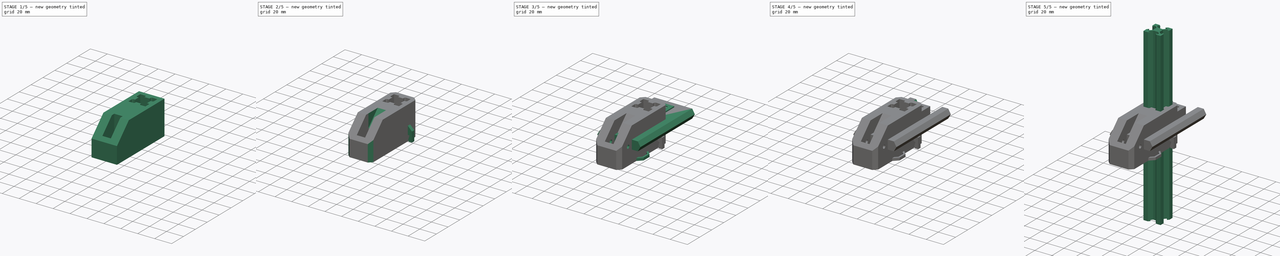
[diagram: build sequence overview — one tinted view per stage of 5, left to right]
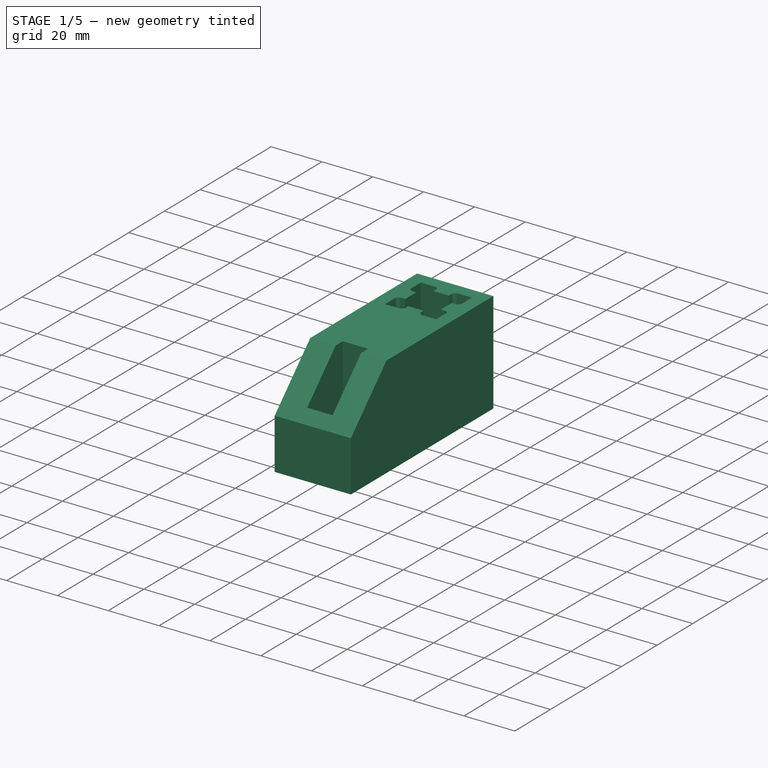
[diagram: stage 1 of 5 — iso view after this stage's code; geometry added in this stage tinted green]
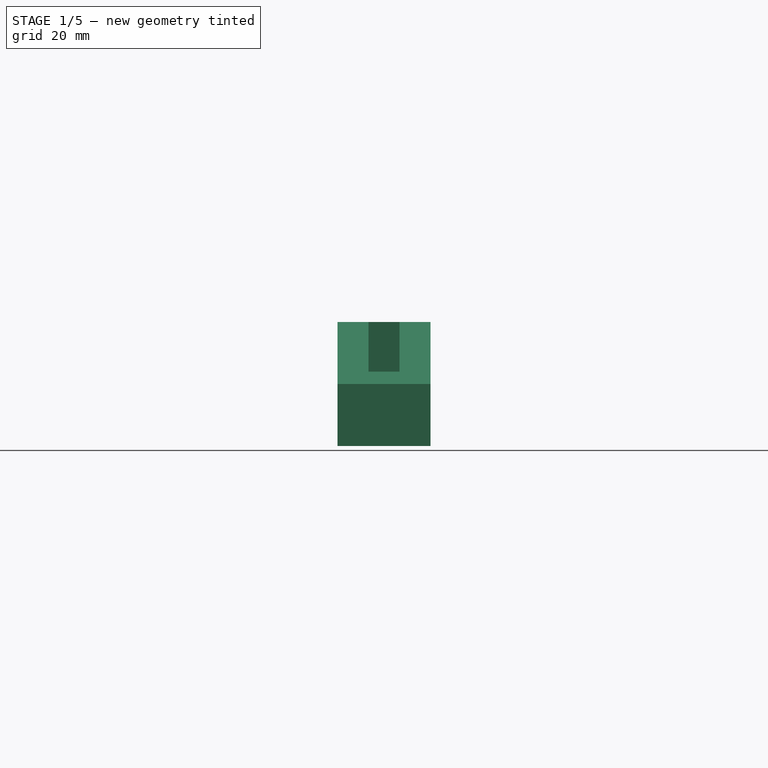
[diagram: stage 1 of 5 — front view after this stage's code; geometry added in this stage tinted green]
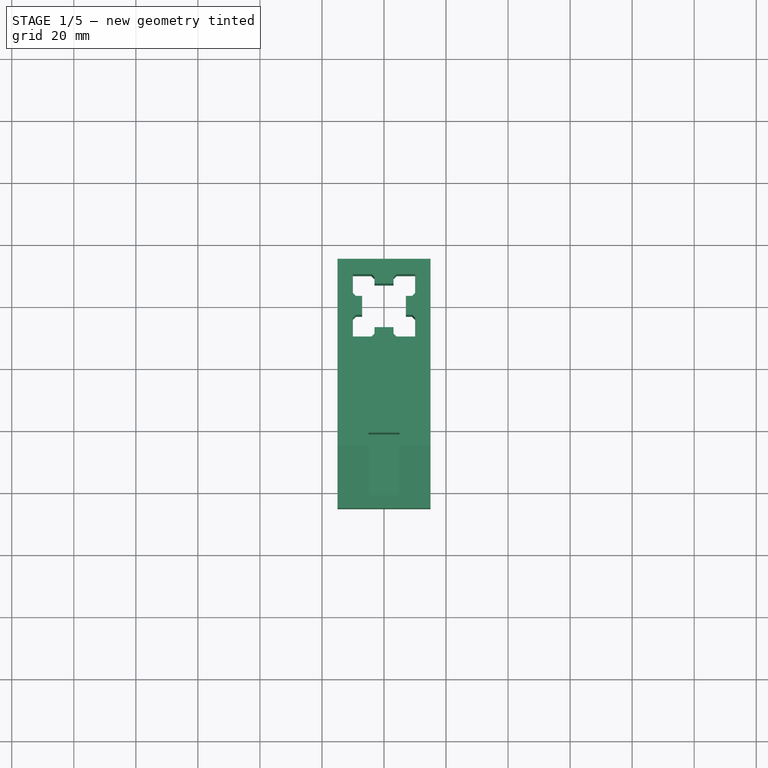
[diagram: stage 1 of 5 — top view after this stage's code; geometry added in this stage tinted green]
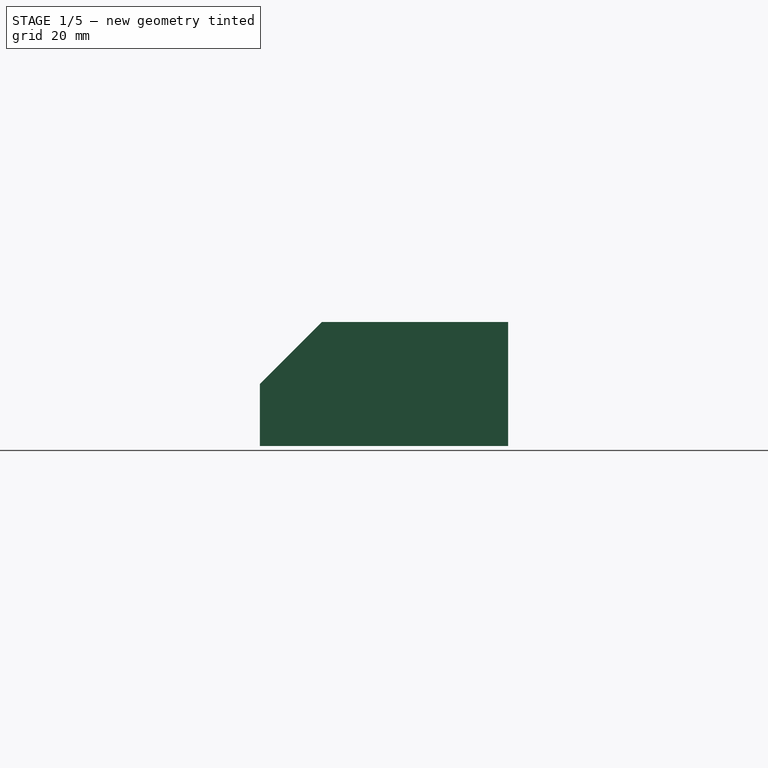
[diagram: stage 1 of 5 — right view after this stage's code; geometry added in this stage tinted green]
FCSTD DOCUMENT  (FreeCAD 0.21R33771 (Git))
Label: gridcap_test_rig
License: All rights reserved
LicenseURL: https://en.wikipedia.org/wiki/All_rights_reserved
objects: Sketcher::SketchObject×15, PartDesign::Pad×11, PartDesign::Body×5, PartDesign::Chamfer×4, PartDesign::Pocket×4, PartDesign::Mirrored×2, Part::Feature×2, PartDesign::PolarPattern×1, PartDesign::MultiTransform×1
note: 64 computed .brp shape members not serialized (recipe doc carries the construction recipe); baked Part::Feature solids carry a one-line shape summary decoded from their .brp

FEATURE [PartDesign::Body] Body  label="z_2020"
  Group = -> [Sketch,Pad,MultiTransform,Mirrored,PolarPattern]
  Origin = -> Origin
  Tip = -> MultiTransform
FEATURE [Sketcher::SketchObject] Sketch002
  FullyConstrained = true
  MapMode = 5
  Support = -> [XY_Plane002]
  expr: Constraints[21] = 20 mm + .Constraints.margin * 2
  expr: Constraints[47] = 6.2 mm - .Constraints.margin * 2
  sketch-geometry (29):
    g0: LineSegment StartX=-15 StartY=-15 StartZ=0 EndX=15 EndY=-15 EndZ=0
    g1: LineSegment StartX=15 StartY=-15 StartZ=0 EndX=15 EndY=15 EndZ=0
    g2: LineSegment StartX=15 StartY=15 StartZ=0 EndX=-15 EndY=15 EndZ=0
    g3: LineSegment StartX=-15 StartY=15 StartZ=0 EndX=-15 EndY=-15 EndZ=0
    g4: LineSegment StartX=-10.05 StartY=10.05 StartZ=0 EndX=10.05 EndY=10.05 EndZ=0
    g5: LineSegment StartX=10.05 StartY=10.05 StartZ=0 EndX=10.05 EndY=-10.05 EndZ=0
    g6: LineSegment StartX=10.05 StartY=-10.05 StartZ=0 EndX=-10.05 EndY=-10.05 EndZ=0
    g7: LineSegment StartX=-10.05 StartY=-10.05 StartZ=0 EndX=-10.05 EndY=10.05 EndZ=0
    g8: LineSegment StartX=-15 StartY=15 StartZ=0 EndX=-15 EndY=14.95 EndZ=0
    g9: LineSegment StartX=10.05 StartY=3.05 StartZ=0 EndX=7.05 EndY=3.05 EndZ=0
    g10: LineSegment StartX=7.05 StartY=3.05 StartZ=0 EndX=7.05 EndY=-3.05 EndZ=0
    g11: LineSegment StartX=7.05 StartY=-3.05 StartZ=0 EndX=10.05 EndY=-3.05 EndZ=0
    g12: LineSegment StartX=3.05 StartY=10.05 StartZ=0 EndX=3.05 EndY=7.05 EndZ=0
    g13: LineSegment StartX=3.05 StartY=7.05 StartZ=0 EndX=-3.05 EndY=7.05 EndZ=0
    g14: LineSegment StartX=-3.05 StartY=7.05 StartZ=0 EndX=-3.05 EndY=10.05 EndZ=0
    g15: LineSegment StartX=-10.05 StartY=3.05 StartZ=0 EndX=-7.05 EndY=3.05 EndZ=0
    g16: LineSegment StartX=-7.05 StartY=3.05 StartZ=0 EndX=-7.05 EndY=-3.05 EndZ=0
    g17: LineSegment StartX=-7.05 StartY=-3.05 StartZ=0 EndX=-10.05 EndY=-3.05 EndZ=0
    g18: LineSegment StartX=-3.05 StartY=-10.05 StartZ=0 EndX=-3.05 EndY=-7.05 EndZ=0
    g19: LineSegment StartX=-3.05 StartY=-7.05 StartZ=0 EndX=3.05 EndY=-7.05 EndZ=0
    g20: LineSegment StartX=3.05 StartY=-7.05 StartZ=0 EndX=3.05 EndY=-10.05 EndZ=0
    g21: LineSegment StartX=10.05 StartY=3.05 StartZ=0 EndX=10.05 EndY=10.05 EndZ=0
    g22: LineSegment StartX=10.05 StartY=10.05 StartZ=0 EndX=3.05 EndY=10.05 EndZ=0
    g23: LineSegment StartX=-3.05 StartY=10.05 StartZ=0 EndX=-10.05 EndY=10.05 EndZ=0
    g24: LineSegment StartX=-10.05 StartY=10.05 StartZ=0 EndX=-10.05 EndY=3.05 EndZ=0
    g25: LineSegment StartX=-10.05 StartY=-3.05 StartZ=0 EndX=-10.05 EndY=-10.05 EndZ=0
    g26: LineSegment StartX=-10.05 StartY=-10.05 StartZ=0 EndX=-3.05 EndY=-10.05 EndZ=0
    g27: LineSegment StartX=3.05 StartY=-10.05 StartZ=0 EndX=10.05 EndY=-10.05 EndZ=0
    g28: LineSegment StartX=10.05 StartY=-10.05 StartZ=0 EndX=10.05 EndY=-3.05 EndZ=0
  constraints (77):
    c: Coincident(g0,g1)
    c: Coincident(g1,g2)
    c: Coincident(g2,g3)
    c: Coincident(g3,g0)
    c: Horizontal(g0)
    c: Horizontal(g2)
    c: Vertical(g1)
    c: Vertical(g3)
    c: Symmetric(g1,g0,g-1)
    c: Equal(g2,g1)
    c: DistanceX(g0,g0) = 30  'slider_width'
    c: Coincident(g4,g5)
    c: Coincident(g5,g6)
    c: Coincident(g6,g7)
    c: Coincident(g7,g4)
    c: Horizontal(g4)
    c: Horizontal(g6)
    c: Vertical(g5)
    c: Vertical(g7)
    c: Symmetric(g4,g6,g-1)
    c: Equal(g5,g6)
    c: DistanceX(g6,g6) = 20.1
    c: Vertical(g8)
    c: Distance(g8) = 0.05  'margin'
    c: PointOnObject(g9,g5)
    c: Horizontal(g9)
    c: Coincident(g10,g9)
    c: Vertical(g10)
    c: Coincident(g11,g10)
    c: Horizontal(g11)
    c: PointOnObject(g12,g4)
    c: Vertical(g12)
    c: Coincident(g13,g12)
    c: Horizontal(g13)
    c: Coincident(g14,g13)
    c: Vertical(g14)
    c: PointOnObject(g15,g7)
    c: Horizontal(g15)
    c: Coincident(g16,g15)
    c: Vertical(g16)
    c: Horizontal(g17)
    c: PointOnObject(g18,g6)
    c: Vertical(g18)
    c: Coincident(g19,g18)
    c: Horizontal(g19)
    c: Coincident(g20,g19)
    c: Vertical(g20)
    c: DistanceY(g11,g9) = 6.1
    c: Symmetric(g9,g11,g-1)
    c: Symmetric(g12,g14,g-2)
    c: Symmetric(g15,g17,g-1)
    c: Symmetric(g18,g20,g-2)
    c: Equal(g9,g12)
    c: Equal(g12,g15)
    c: Equal(g15,g18)
    c: Equal(g10,g13)
    c: Equal(g13,g16)
    c: Equal(g16,g19)
    c: DistanceX(g11,g11) = 3
    c: Coincident(g21,g9)
    c: Coincident(g21,g4)
    c: Coincident(g22,g21)
    c: Coincident(g22,g12)
    c: Coincident(g23,g14)
    c: Coincident(g23,g4)
    c: Coincident(g24,g23)
    c: Coincident(g24,g15)
    c: Coincident(g25,g17)
    c: Coincident(g25,g6)
    c: Coincident(g26,g25)
    c: Coincident(g26,g18)
    c: Coincident(g27,g20)
    c: Coincident(g27,g5)
    c: Coincident(g28,g27)
    c: Coincident(g28,g11)
    c: Coincident(g16,g17)
    c: Coincident(g8,g2)
FEATURE [PartDesign::Pad] Pad002
  Direction = (0,0,1)
  Length = 40
  Length2 = 10
  Midplane = true
  Profile = -> Sketch002
  ReferenceAxis = -> Sketch002 [N_Axis]
  Type = 0
FEATURE [PartDesign::Chamfer] Chamfer
  Angle = 45
  Base = -> Pad002 [Edge53,Edge59,Edge44,Edge38,Edge29,Edge23,Edge13,Edge68]
  BaseFeature = -> Pad002
  ChamferType = 0
  FlipDirection = false
  Size = 1
  Size2 = 1
  SupportTransform = false
  UseAllEdges = false
  expr: Size = 1 mm
FEATURE [Sketcher::SketchObject] Sketch003
  ExternalGeometry = -> [Chamfer]
  FullyConstrained = true
  MapMode = 5
  Placement = pos=(0,0,0) rot=(0.57735,0.57735,0.57735;2.0944rad)
  Support = -> [YZ_Plane002]
  expr: Constraints[15] = 90 + 45
  sketch-geometry (6):
    g0: LineSegment StartX=-15 StartY=-20 StartZ=0 EndX=-40.05 EndY=-20 EndZ=0
    g1: LineSegment StartX=-40.05 StartY=-20 StartZ=0 EndX=-65.05 EndY=-20 EndZ=0
    g2: LineSegment StartX=-65.05 StartY=-20 StartZ=0 EndX=-65.05 EndY=0 EndZ=0
    g3: LineSegment StartX=-15 StartY=20 StartZ=0 EndX=-45.05 EndY=20 EndZ=0
    g4: LineSegment StartX=-45.05 StartY=20 StartZ=0 EndX=-65.05 EndY=0 EndZ=0
    g5: LineSegment StartX=-15 StartY=20 StartZ=0 EndX=-15 EndY=-20 EndZ=0
  constraints (16):
    c: Coincident(g0,g-5)
    c: Horizontal(g0)
    c: Coincident(g1,g0)
    c: Horizontal(g1)
    c: DistanceX(g1,g1) = 25
    c: Coincident(g2,g1)
    c: Vertical(g2)
    c: Coincident(g3,g-4)
    c: Horizontal(g3)
    c: Coincident(g4,g3)
    c: Coincident(g4,g2)
    c: Coincident(g5,g3)
    c: Coincident(g5,g0)
    c: DistanceY(g2,g2) = 20
    c: DistanceX(g0,g-7) = 30
    c: Angle(g2,g4) = 2.35619
FEATURE [PartDesign::Pad] Pad003
  BaseFeature = -> Chamfer
  Direction = (1,-2e-16,3e-16)
  Length = 30
  Length2 = 10
  Midplane = true
  Profile = -> Sketch003
  ReferenceAxis = -> Sketch003 [N_Axis]
  Type = 0
  expr: Length = <<Sketch002>>.Constraints.slider_width
FEATURE [Sketcher::SketchObject] Sketch004
  ExternalGeometry = -> [Pad003]
  FullyConstrained = true
  MapMode = 5
  Placement = pos=(-5.6e-15,4.4e-15,20) rot=(0,0,1;0rad)
  Support = -> [Pad003]
  sketch-geometry (9):
    g0: LineSegment StartX=-5 StartY=-61.05 StartZ=0 EndX=5 EndY=-61.05 EndZ=0
    g1: LineSegment StartX=5 StartY=-61.05 StartZ=0 EndX=5 EndY=-41.05 EndZ=0
    g2: LineSegment StartX=5 StartY=-41.05 StartZ=0 EndX=-5 EndY=-41.05 EndZ=0
    g3: LineSegment StartX=-5 StartY=-41.05 StartZ=0 EndX=-5 EndY=-61.05 EndZ=0
    g4: Circle CenterX=0 CenterY=-56.05 CenterZ=0 NormalX=0 NormalY=0 NormalZ=1 AngleXU=0 Radius=2.25
    g5: Circle CenterX=0 CenterY=-46.05 CenterZ=0 NormalX=0 NormalY=0 NormalZ=1 AngleXU=0 Radius=2.25
    g6: LineSegment StartX=0 StartY=-46.05 StartZ=0 EndX=0 EndY=-41.05 EndZ=0
    g7: LineSegment StartX=0 StartY=-56.05 StartZ=0 EndX=0 EndY=-61.05 EndZ=0
    g8: LineSegment StartX=0 StartY=-56.05 StartZ=0 EndX=5 EndY=-56.05 EndZ=0
  constraints (27):
    c: Coincident(g0,g1)
    c: Coincident(g1,g2)
    c: Coincident(g2,g3)
    c: Coincident(g3,g0)
    c: Horizontal(g0)
    c: Vertical(g1)
    c: Vertical(g3)
    c: DistanceY(g1,g1) = 20
    c: Symmetric(g2,g1,g-2)
    c: PointOnObject(g4,g-2)
    c: PointOnObject(g5,g-2)
    c: Equal(g5,g4)
    c: DistanceY(g5,g-7) = 6
    c: DistanceY(g4,g5) = 10
    c: DistanceY(g0,g4) = 5
    c: Coincident(g6,g5)
    c: PointOnObject(g6,g2)
    c: Vertical(g6)
    c: Coincident(g7,g4)
    c: PointOnObject(g7,g0)
    c: Vertical(g7)
    c: Equal(g6,g7)
    c: Coincident(g8,g4)
    c: PointOnObject(g8,g1)
    c: Horizontal(g8)
    c: Equal(g8,g7)
    c: Diameter(g5) = 4.5
FEATURE [PartDesign::Pocket] Pocket
  BaseFeature = -> Pad003
  Direction = (3e-16,-2e-16,-1)
  Length = 0
  Length2 = 5
  Offset = -5
  Profile = -> Sketch004
  ReferenceAxis = -> Sketch004 [N_Axis]
  Type = 3
  UpToFace = -> Pad003 [Face36]
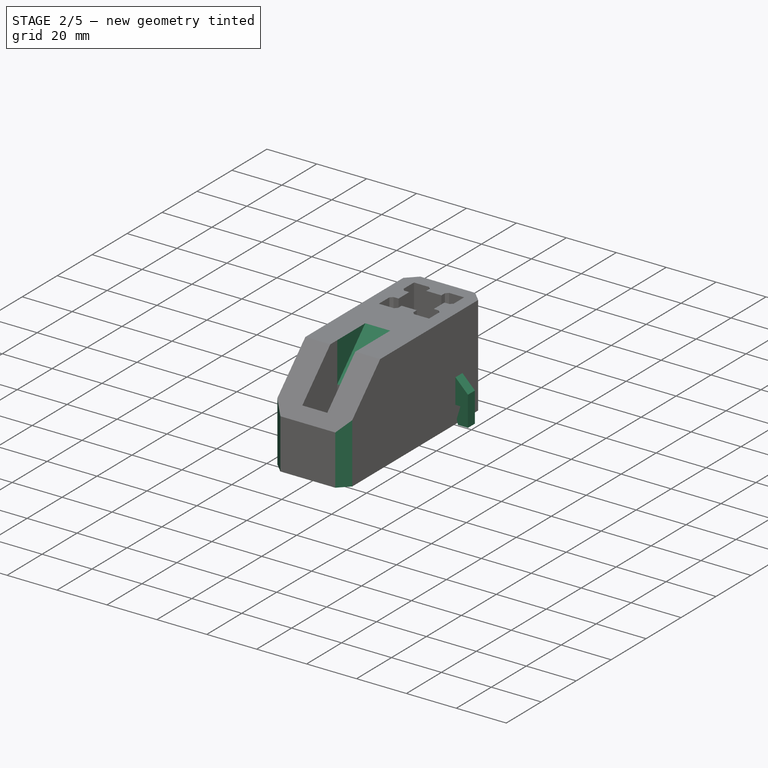
[diagram: stage 2 of 5 — iso view after this stage's code; geometry added in this stage tinted green]
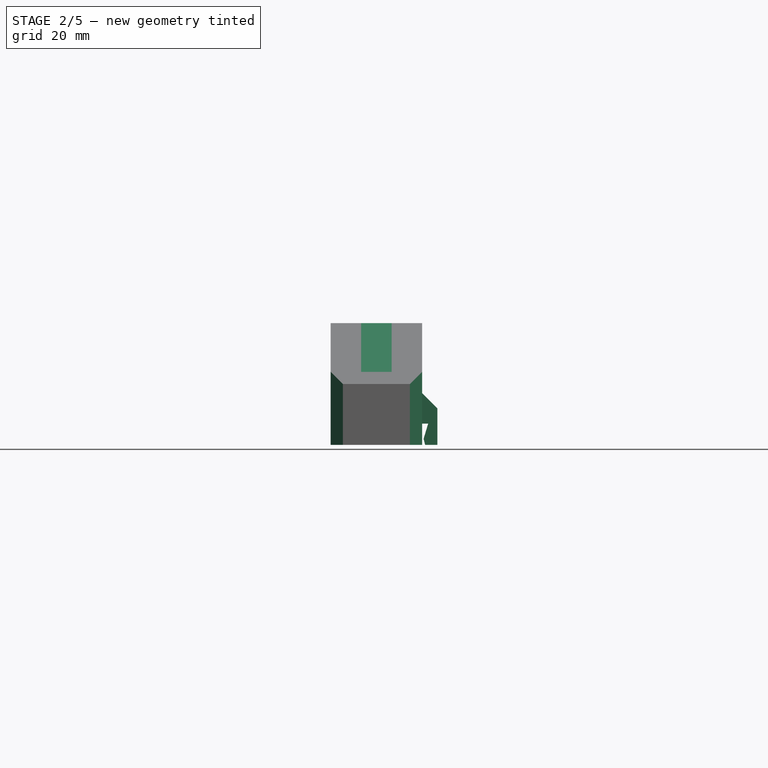
[diagram: stage 2 of 5 — front view after this stage's code; geometry added in this stage tinted green]
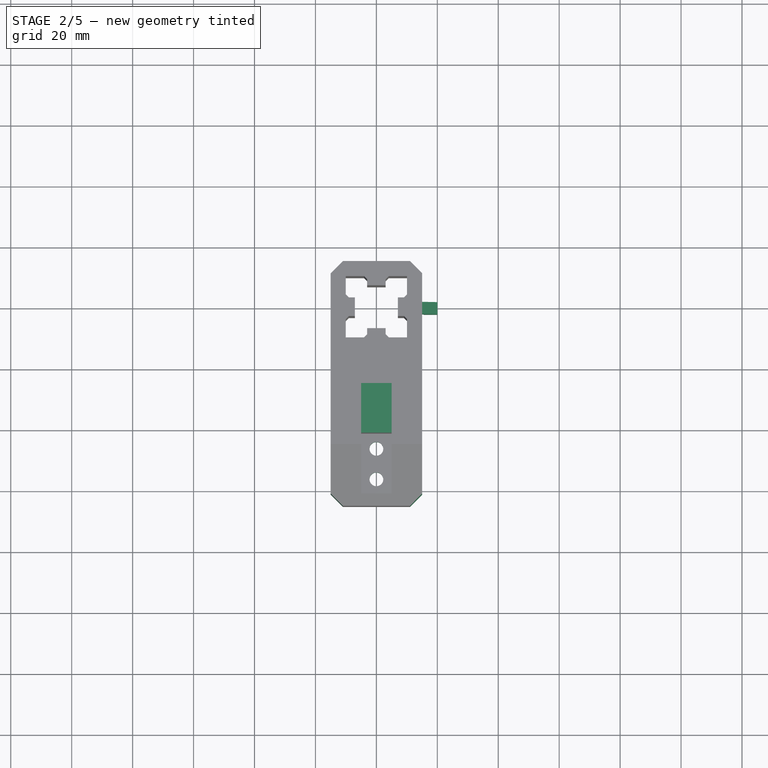
[diagram: stage 2 of 5 — top view after this stage's code; geometry added in this stage tinted green]
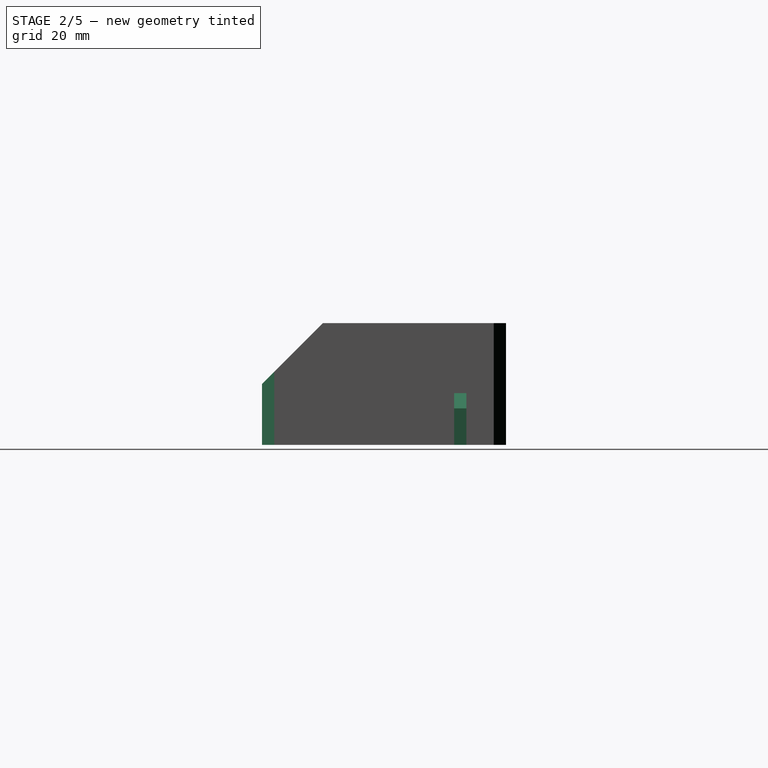
[diagram: stage 2 of 5 — right view after this stage's code; geometry added in this stage tinted green]
FEATURE [PartDesign::Chamfer] Chamfer001
  Angle = 45
  Base = -> Pocket [Edge103]
  BaseFeature = -> Pocket
  ChamferType = 0
  FlipDirection = false
  Size = 16
  Size2 = 1
  SupportTransform = false
  UseAllEdges = false
FEATURE [Sketcher::SketchObject] Sketch005
  ExternalGeometry = -> [Chamfer001]
  FullyConstrained = true
  MapMode = 5
  Placement = pos=(4.2e-15,-3.3e-15,-15) rot=(0,0,1;0rad)
  Support = -> [Chamfer001]
  sketch-geometry (6):
    g0: Circle CenterX=0 CenterY=-46.05 CenterZ=0 NormalX=0 NormalY=0 NormalZ=1 AngleXU=0 Radius=2.25
    g1: Circle CenterX=0 CenterY=-56.05 CenterZ=0 NormalX=0 NormalY=0 NormalZ=1 AngleXU=0 Radius=2.25
    g2: LineSegment StartX=0 StartY=-46.05 StartZ=0 EndX=0 EndY=-41.05 EndZ=0
    g3: LineSegment StartX=0 StartY=-56.05 StartZ=0 EndX=0 EndY=-61.05 EndZ=0
    g4: LineSegment StartX=0 StartY=-46.05 StartZ=0 EndX=5 EndY=-46.05 EndZ=0
    g5: LineSegment StartX=0 StartY=-56.05 StartZ=0 EndX=-5 EndY=-56.05 EndZ=0
  constraints (18):
    c: PointOnObject(g0,g-2)
    c: PointOnObject(g1,g-2)
    c: Equal(g0,g1)
    c: Coincident(g2,g0)
    c: Vertical(g2)
    c: Coincident(g3,g1)
    c: PointOnObject(g3,g-2)
    c: Coincident(g4,g0)
    c: Horizontal(g4)
    c: Coincident(g5,g1)
    c: Horizontal(g5)
    c: Diameter(g0) = 4.5
    c: Equal(g2,g4)
    c: Equal(g5,g3)
    c: PointOnObject(g4,g-4)
    c: PointOnObject(g2,g-3)
    c: PointOnObject(g5,g-5)
    c: PointOnObject(g3,g-6)
FEATURE [PartDesign::Pocket] Pocket001
  BaseFeature = -> Chamfer001
  Direction = (3e-16,-2e-16,-1)
  Length = 5
  Length2 = 5
  Profile = -> Sketch005
  ReferenceAxis = -> Sketch005 [N_Axis]
  Type = 1
FEATURE [Sketcher::SketchObject] Sketch006
  ExternalGeometry = -> [Pocket001]
  FullyConstrained = true
  MapMode = 5
  Placement = pos=(0,0,0) rot=(1,0,0;1.5708rad)
  Support = -> [XZ_Plane002]
  sketch-geometry (8):
    g0: LineSegment StartX=16 StartY=-20 StartZ=0 EndX=20 EndY=-20 EndZ=0
    g1: LineSegment StartX=20 StartY=-20 StartZ=0 EndX=20 EndY=-8 EndZ=0
    g2: LineSegment StartX=20 StartY=-8 StartZ=0 EndX=15 EndY=-3 EndZ=0
    g3: LineSegment StartX=15 StartY=-20 StartZ=0 EndX=16 EndY=-20 EndZ=0
    g4: LineSegment StartX=15.5 StartY=-18 StartZ=0 EndX=16 EndY=-20 EndZ=0
    g5: LineSegment StartX=15.5 StartY=-18 StartZ=0 EndX=17 EndY=-13 EndZ=0
    g6: LineSegment StartX=17 StartY=-13 StartZ=0 EndX=15 EndY=-13 EndZ=0
    g7: LineSegment StartX=15 StartY=-13 StartZ=0 EndX=15 EndY=-3 EndZ=0
  constraints (22):
    c: Horizontal(g0)
    c: Coincident(g1,g0)
    c: Vertical(g1)
    c: Coincident(g2,g1)
    c: DistanceX(g0,g0) = 4
    c: Horizontal(g3)
    c: DistanceX(g3,g3) = 1
    c: Coincident(g4,g0)
    c: Coincident(g0,g3)
    c: Coincident(g5,g4)
    c: Coincident(g6,g5)
    c: Horizontal(g6)
    c: Coincident(g7,g6)
    c: Coincident(g7,g2)
    c: Angle(g7,g2) = 0.785398
    c: DistanceX(g3,g4) = 0.5
    c: DistanceX(g6,g5) = 2
    c: DistanceY(g6,g2) = 10
    c: DistanceY(g3,g6) = 7
    c: DistanceY(g0,g4) = 2
    c: Coincident(g3,g-3)
    c: Tangent(g7,g-3)
FEATURE [PartDesign::Pad] Pad004
  BaseFeature = -> Pocket001
  Direction = (0,-1,-2e-16)
  Length = 4
  Length2 = 10
  Midplane = true
  Profile = -> Sketch006
  ReferenceAxis = -> Sketch006 [N_Axis]
  Type = 0
FEATURE [PartDesign::Chamfer] Chamfer002
  Angle = 45
  Base = -> Pad004 [Edge64,Edge29,Edge136,Edge71]
  BaseFeature = -> Pad004
  ChamferType = 0
  FlipDirection = false
  Size = 4
  Size2 = 1
  SupportTransform = false
  UseAllEdges = false
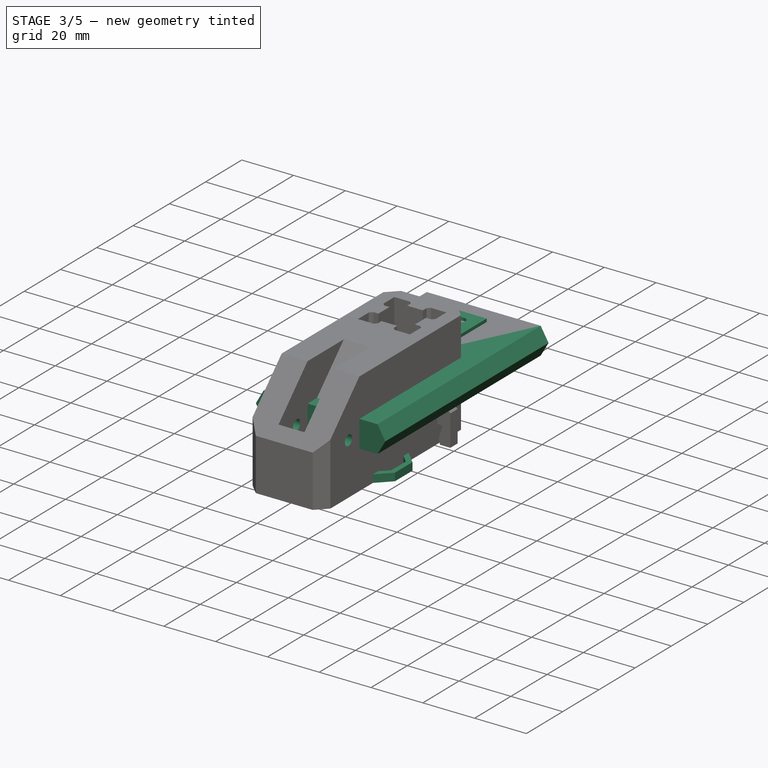
[diagram: stage 3 of 5 — iso view after this stage's code; geometry added in this stage tinted green]
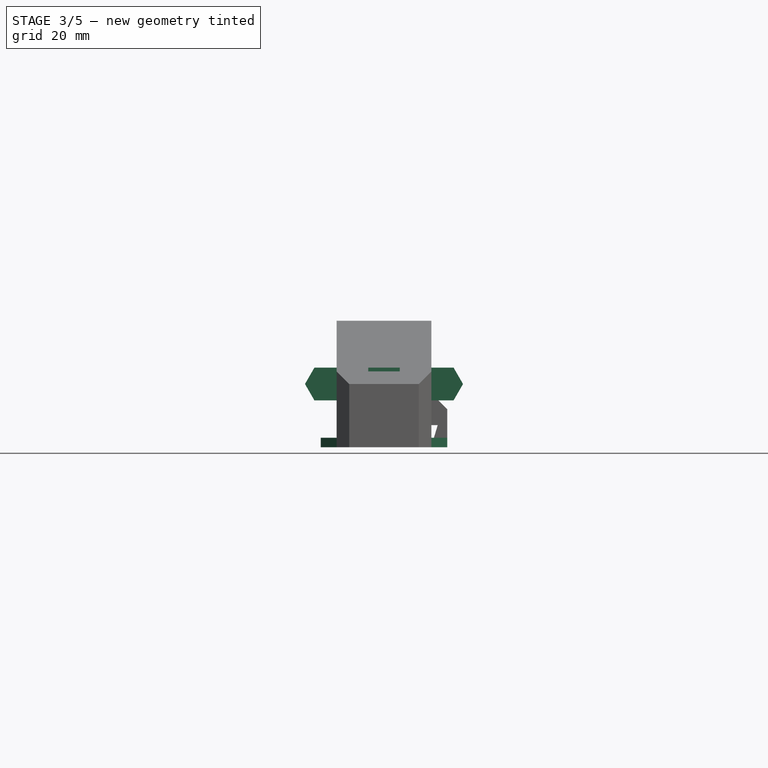
[diagram: stage 3 of 5 — front view after this stage's code; geometry added in this stage tinted green]
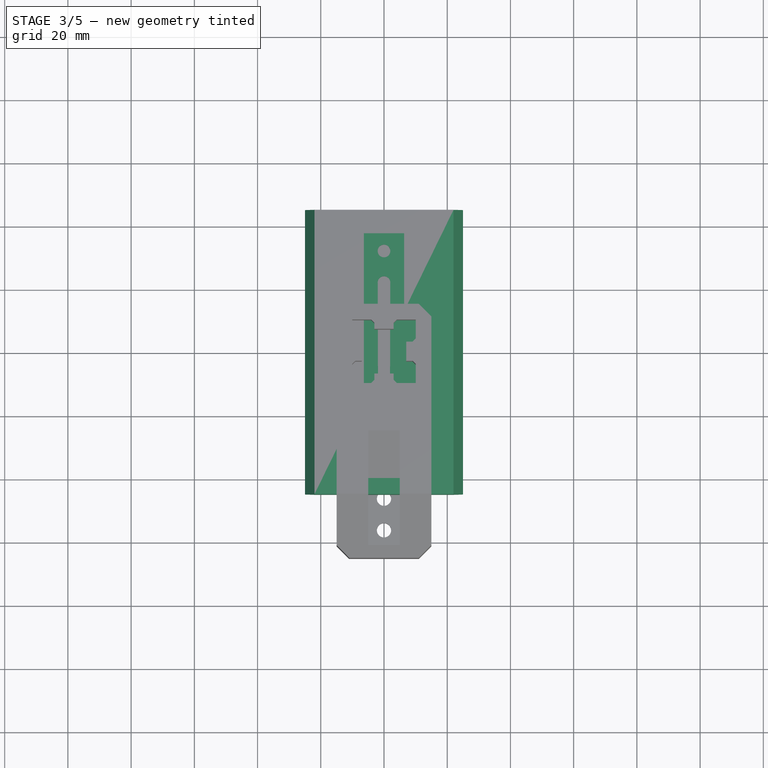
[diagram: stage 3 of 5 — top view after this stage's code; geometry added in this stage tinted green]
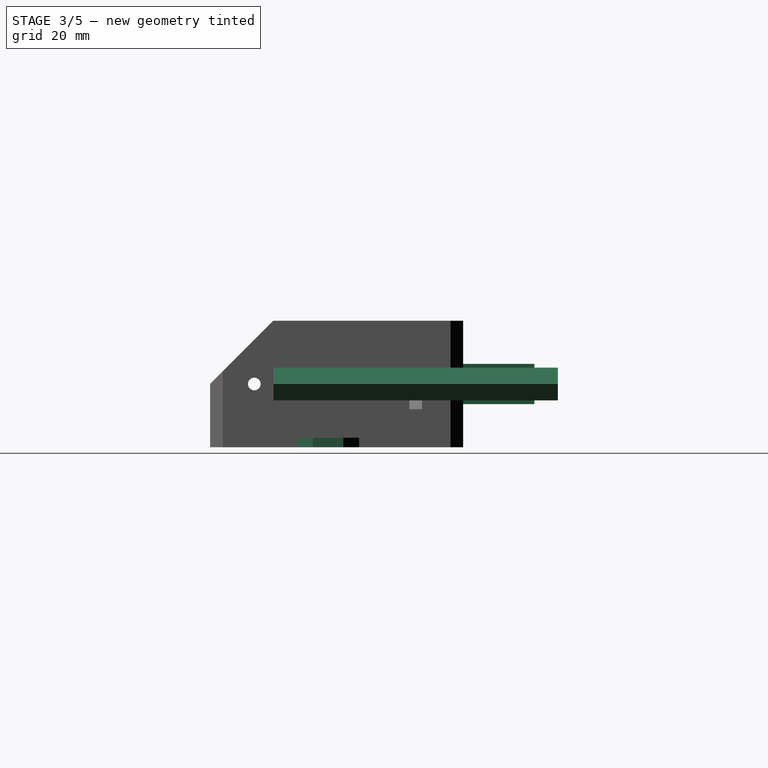
[diagram: stage 3 of 5 — right view after this stage's code; geometry added in this stage tinted green]
FEATURE [PartDesign::Body] Body003  label="z_top_hat"
  Group = -> [Sketch007,Pad005,Sketch008,Pad006,Sketch009,Pad007,Chamfer003]
  Origin = -> Origin003
  Placement = pos=(0,0,100) rot=(0,0,1;0rad)
  Tip = -> Chamfer003
FEATURE [Sketcher::SketchObject] Sketch013
  FullyConstrained = true
  MapMode = 5
  Placement = pos=(0,0,0) rot=(1,0,0;1.5708rad)
  Support = -> [XZ_Plane004]
  sketch-geometry (10):
    g0: LineSegment StartX=-25 StartY=5.19615 StartZ=0 EndX=25 EndY=5.19615 EndZ=0
    g1: LineSegment StartX=25 StartY=5.19615 StartZ=0 EndX=25 EndY=-5.19615 EndZ=0
    g2: LineSegment StartX=25 StartY=-5.19615 StartZ=0 EndX=-25 EndY=-5.19615 EndZ=0
    g3: LineSegment StartX=-25 StartY=-5.19615 StartZ=0 EndX=-25 EndY=5.19615 EndZ=0
    g4: LineSegment StartX=-22 StartY=5.19615 StartZ=0 EndX=-25 EndY=2.7e-15 EndZ=0
    g5: LineSegment StartX=-25 StartY=2.8e-15 StartZ=0 EndX=-22 EndY=-5.19615 EndZ=0
    g6: LineSegment StartX=22 StartY=5.19615 StartZ=0 EndX=25 EndY=0 EndZ=0
    g7: LineSegment StartX=25 StartY=0 StartZ=0 EndX=22 EndY=-5.19615 EndZ=0
    g8: LineSegment StartX=-22 StartY=5.19615 StartZ=0 EndX=22 EndY=5.19615 EndZ=0
    g9: LineSegment StartX=22 StartY=-5.19615 StartZ=0 EndX=-22 EndY=-5.19615 EndZ=0
  constraints (27):
    c: Coincident(g0,g1)
    c: Coincident(g1,g2)
    c: Coincident(g2,g3)
    c: Coincident(g3,g0)
    c: Horizontal(g0)
    c: Horizontal(g2)
    c: Vertical(g1)
    c: Vertical(g3)
    c: Symmetric(g0,g2,g-1)
    c: DistanceX(g2,g2) = 50
    c: PointOnObject(g4,g0)
    c: PointOnObject(g4,g3)
    c: Coincident(g5,g4)
    c: PointOnObject(g6,g0)
    c: PointOnObject(g6,g1)
    c: Coincident(g7,g6)
    c: Equal(g6,g7)
    c: Equal(g7,g5)
    c: Equal(g5,g4)
    c: Angle(g5,g4) = 2.0944
    c: DistanceX(g4,g4) = 3
    c: Symmetric(g5,g4,g-1)
    c: Symmetric(g6,g7,g-1)
    c: Coincident(g8,g4)
    c: Coincident(g8,g6)
    c: Coincident(g9,g7)
    c: Coincident(g9,g5)
FEATURE [PartDesign::Pad] Pad008
  Direction = (0,-1,2e-16)
  Length = 90
  Length2 = 10
  Midplane = true
  Placement = pos=(0,0,0) rot=(1,0,0;1.5708rad)
  Profile = -> Sketch013
  ReferenceAxis = -> Sketch013 [N_Axis]
  Type = 0
FEATURE [PartDesign::Body] Body004  label="press_handle"
  Group = -> [Sketch013,Pad008,Sketch014,Pocket003,Sketch015,Pad009]
  Origin = -> Origin004
  Placement = pos=(0,-70.05,-11.8) rot=(0,0,1;0rad)
  Tip = -> Pad009
FEATURE [Sketcher::SketchObject] Sketch017
  ExternalGeometry = -> [Chamfer002]
  FullyConstrained = true
  MapMode = 5
  Placement = pos=(15,-3.3e-15,3.3e-15) rot=(0.57735,0.57735,0.57735;2.0944rad)
  Support = -> [Chamfer002]
  sketch-geometry (2):
    g0: LineSegment StartX=-51.05 StartY=-15 StartZ=0 EndX=-51.05 EndY=8.9e-15 EndZ=0
    g1: Circle CenterX=-51.05 CenterY=8.9e-15 CenterZ=0 NormalX=0 NormalY=0 NormalZ=1 AngleXU=0 Radius=2
  constraints (5):
    c: Vertical(g0)
    c: Coincident(g1,g0)
    c: Diameter(g1) = 4
    c: Symmetric(g-3,g-3,g0)
    c: DistanceY(g0,g0) = 15
FEATURE [PartDesign::Pocket] Pocket004
  BaseFeature = -> Chamfer002
  Direction = (-1,2e-16,-2e-16)
  Length = 5
  Length2 = 5
  Profile = -> Sketch017
  ReferenceAxis = -> Sketch017 [N_Axis]
  Type = 1
FEATURE [Part::Feature] Part__Feature  label="table_clamp"
  Placement = pos=(0,0,-100) rot=(0,0,-1;1.5708rad)
  shape: bbox 80 x 100 x 43 mm, 48 faces (baked)
FEATURE [Part::Feature] Part__Feature001  label="foot"
  Placement = pos=(0,0,-100) rot=(0,0,1;0rad)
  shape: bbox 60.12 x 60.12 x 30 mm, 82 faces (baked)
FEATURE [Sketcher::SketchObject] Sketch018
  FullyConstrained = true
  MapMode = 5
  Support = -> [XY_Plane005]
  sketch-geometry (8):
    g0: LineSegment StartX=-6.36 StartY=37.55 StartZ=0 EndX=6.36 EndY=37.55 EndZ=0
    g1: LineSegment StartX=6.36 StartY=37.55 StartZ=0 EndX=6.36 EndY=-37.55 EndZ=0
    g2: LineSegment StartX=6.36 StartY=-37.55 StartZ=0 EndX=-6.36 EndY=-37.55 EndZ=0
    g3: LineSegment StartX=-6.36 StartY=-37.55 StartZ=0 EndX=-6.36 EndY=37.55 EndZ=0
    g4: Circle CenterX=0 CenterY=31.95 CenterZ=0 NormalX=0 NormalY=0 NormalZ=1 AngleXU=0 Radius=2
    g5: Circle CenterX=0 CenterY=21.95 CenterZ=0 NormalX=0 NormalY=0 NormalZ=1 AngleXU=0 Radius=2
    g6: Circle CenterX=0 CenterY=-21.95 CenterZ=0 NormalX=0 NormalY=0 NormalZ=1 AngleXU=0 Radius=2
    g7: Circle CenterX=0 CenterY=-31.95 CenterZ=0 NormalX=0 NormalY=0 NormalZ=1 AngleXU=0 Radius=2
  constraints (23):
    c: Coincident(g0,g1)
    c: Coincident(g1,g2)
    c: Coincident(g2,g3)
    c: Coincident(g3,g0)
    c: Horizontal(g0)
    c: Horizontal(g2)
    c: Vertical(g1)
    c: Vertical(g3)
    c: Symmetric(g0,g2,g-1)
    c: DistanceX(g0,g0) = 12.72
    c: DistanceY(g3,g3) = 75.1
    c: PointOnObject(g4,g-2)
    c: PointOnObject(g5,g-2)
    c: PointOnObject(g6,g-2)
    c: PointOnObject(g7,g-2)
    c: Equal(g4,g5)
    c: Equal(g5,g6)
    c: Equal(g6,g7)
    c: DistanceY(g5,g4) = 10
    c: DistanceY(g7,g6) = 10
    c: DistanceY(g4,g0) = 5.6
    c: DistanceY(g2,g7) = 5.6
    c: Diameter(g4) = 4
FEATURE [PartDesign::Pad] Pad010
  Direction = (0,0,1)
  Length = 12.75
  Length2 = 10
  Midplane = true
  Profile = -> Sketch018
  ReferenceAxis = -> Sketch018 [N_Axis]
  Type = 0
FEATURE [PartDesign::Body] Body005  label="load_cell"
  Group = -> [Sketch018,Pad010]
  Origin = -> Origin005
  Placement = pos=(0,-78,-27.75) rot=(0,0,1;0rad)
  Tip = -> Pad010
FEATURE [Sketcher::SketchObject] Sketch019
  ExternalGeometry = -> [Pocket004]
  FullyConstrained = true
  MapMode = 5
  Placement = pos=(5.6e-15,-4.4e-15,-20) rot=(1,0,0;3.14159rad)
  Support = -> [Pocket004]
  sketch-geometry (10):
    g0: LineSegment StartX=15 StartY=34.7216 StartZ=0 EndX=18 EndY=31.7216 EndZ=0
    g1: LineSegment StartX=18 StartY=31.7216 StartZ=0 EndX=18 EndY=23.7216 EndZ=0
    g2: LineSegment StartX=18 StartY=23.7216 StartZ=0 EndX=15 EndY=20.7216 EndZ=0
    g3: LineSegment StartX=15 StartY=20.7216 StartZ=0 EndX=15 EndY=17.8931 EndZ=0
    g4: LineSegment StartX=15 StartY=17.8931 StartZ=0 EndX=20 EndY=22.8931 EndZ=0
    g5: LineSegment StartX=20 StartY=22.8931 StartZ=0 EndX=20 EndY=32.55 EndZ=0
    g6: LineSegment StartX=20 StartY=32.55 StartZ=0 EndX=15 EndY=37.55 EndZ=0
    g7: LineSegment StartX=15 StartY=37.55 StartZ=0 EndX=15 EndY=34.7216 EndZ=0
    g8: LineSegment StartX=18 StartY=31.7216 StartZ=0 EndX=19.4142 EndY=33.1358 EndZ=0
    g9: LineSegment StartX=18 StartY=23.7216 StartZ=0 EndX=19.4142 EndY=22.3074 EndZ=0
  constraints (30):
    c: PointOnObject(g0,g-3)
    c: Coincident(g1,g0)
    c: Vertical(g1)
    c: Coincident(g2,g1)
    c: PointOnObject(g2,g-3)
    c: Coincident(g3,g2)
    c: PointOnObject(g3,g-3)
    c: Coincident(g4,g3)
    c: Coincident(g5,g4)
    c: Vertical(g5)
    c: Coincident(g6,g5)
    c: PointOnObject(g6,g-3)
    c: Coincident(g7,g6)
    c: Coincident(g7,g0)
    c: Parallel(g0,g6)
    c: Parallel(g2,g4)
    c: Coincident(g8,g0)
    c: PointOnObject(g8,g6)
    c: Perpendicular(g0,g8)
    c: Coincident(g9,g1)
    c: PointOnObject(g9,g4)
    c: Perpendicular(g9,g2)
    c: Equal(g8,g9)
    c: Angle(g-3,g0) = 0.785398
    c: Distance(g8) = 2
    c: DistanceX(g0,g5) = 2
    c: Angle(g2,g-3) = 0.785398
    c: DistanceX(g0,g0) = 3
    c: DistanceY(g1,g0) = 8
    c: DistanceY(g6,g-3) = 2.5
FEATURE [PartDesign::Pad] Pad011
  BaseFeature = -> Pocket004
  Direction = (3e-16,-2e-16,-1)
  Length = 3
  Length2 = 10
  Profile = -> Sketch019
  ReferenceAxis = -> Sketch019 [N_Axis]
  Reversed = true
  Type = 0
FEATURE [PartDesign::Mirrored] Mirrored001
  BaseFeature = -> Pad011
  MirrorPlane = -> Sketch019 [V_Axis]
  Originals = -> [Pad011]
FEATURE [PartDesign::Body] Body002  label="x_axis"
  Group = -> [Sketch002,Pad002,Chamfer,Sketch003,Pad003,Sketch004,Pocket,Chamfer001,Sketch005,Pocket001,Sketch006,Pad004,Chamfer002,Sketch017,Pocket004,Sketch019,Pad011,Mirrored001]
  Origin = -> Origin002
  Tip = -> Mirrored001
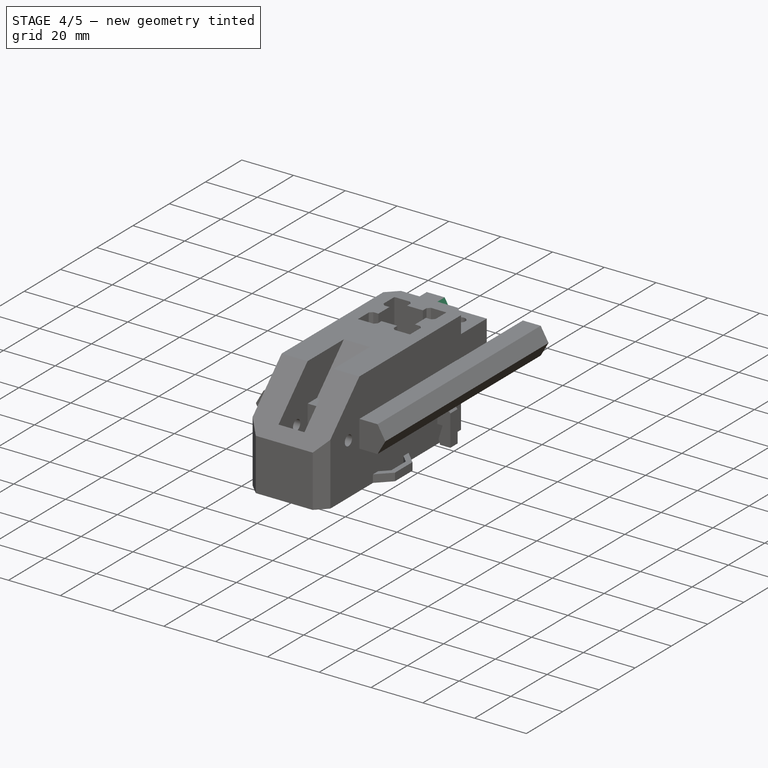
[diagram: stage 4 of 5 — iso view after this stage's code; geometry added in this stage tinted green]
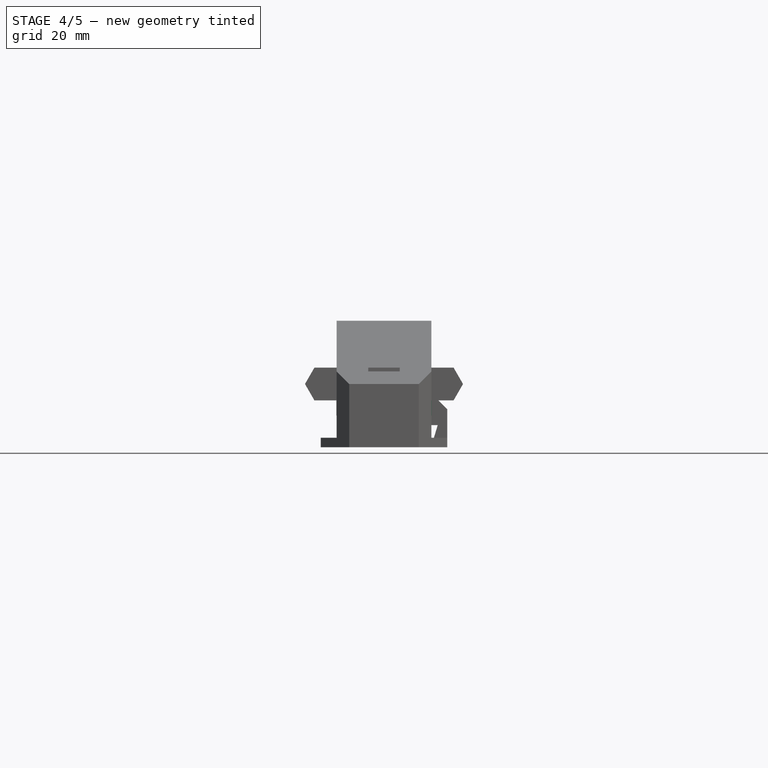
[diagram: stage 4 of 5 — front view after this stage's code; geometry added in this stage tinted green]
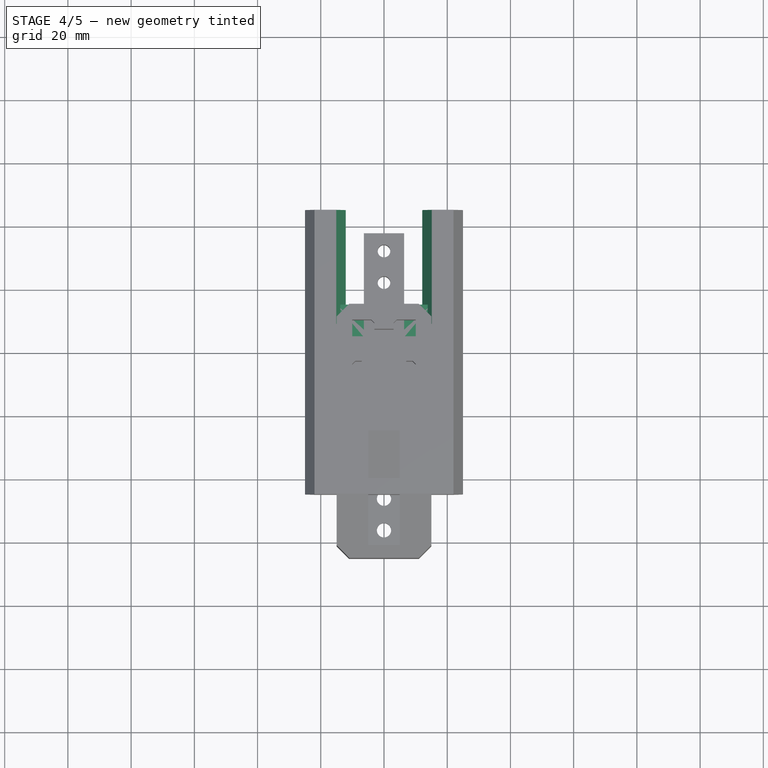
[diagram: stage 4 of 5 — top view after this stage's code; geometry added in this stage tinted green]
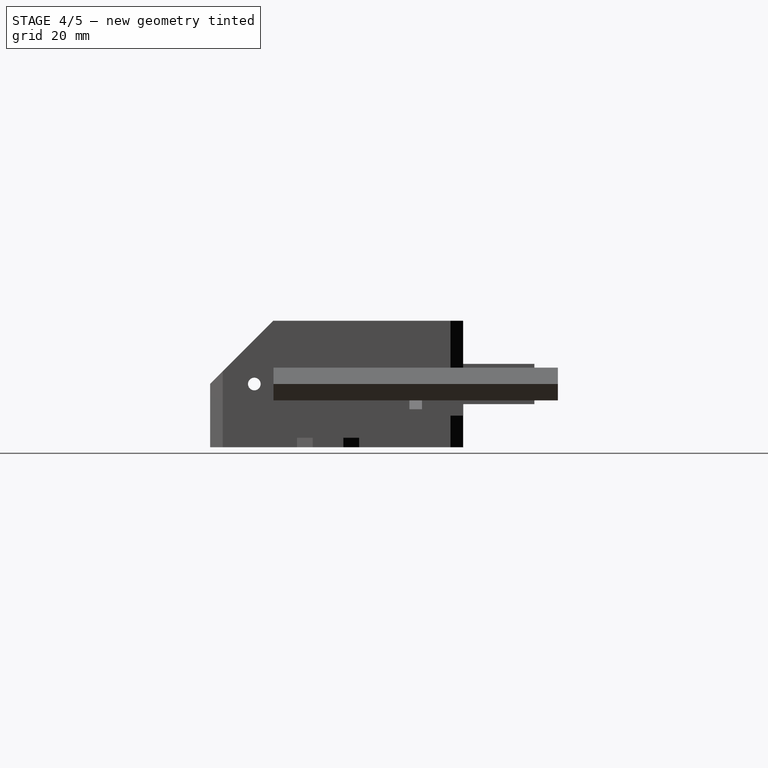
[diagram: stage 4 of 5 — right view after this stage's code; geometry added in this stage tinted green]
FEATURE [Sketcher::SketchObject] Sketch007
  FullyConstrained = true
  MapMode = 5
  Support = -> [XY_Plane003]
  expr: Constraints[10] = 20 mm + .Constraints.margin * 2
  sketch-geometry (9):
    g0: LineSegment StartX=-10.05 StartY=10.05 StartZ=0 EndX=10.05 EndY=10.05 EndZ=0
    g1: LineSegment StartX=10.05 StartY=10.05 StartZ=0 EndX=10.05 EndY=-10.05 EndZ=0
    g2: LineSegment StartX=10.05 StartY=-10.05 StartZ=0 EndX=-10.05 EndY=-10.05 EndZ=0
    g3: LineSegment StartX=-10.05 StartY=-10.05 StartZ=0 EndX=-10.05 EndY=10.05 EndZ=0
    g4: LineSegment StartX=-10.05 StartY=10.05 StartZ=0 EndX=-10.1 EndY=10.05 EndZ=0
    g5: LineSegment StartX=-15.05 StartY=15.05 StartZ=0 EndX=15.05 EndY=15.05 EndZ=0
    g6: LineSegment StartX=15.05 StartY=15.05 StartZ=0 EndX=15.05 EndY=-15.05 EndZ=0
    g7: LineSegment StartX=15.05 StartY=-15.05 StartZ=0 EndX=-15.05 EndY=-15.05 EndZ=0
    g8: LineSegment StartX=-15.05 StartY=-15.05 StartZ=0 EndX=-15.05 EndY=15.05 EndZ=0
  constraints (25):
    c: Coincident(g0,g1)
    c: Coincident(g1,g2)
    c: Coincident(g2,g3)
    c: Coincident(g3,g0)
    c: Horizontal(g0)
    c: Horizontal(g2)
    c: Vertical(g1)
    c: Vertical(g3)
    c: Equal(g3,g0)
    c: Symmetric(g0,g2,g-1)
    c: DistanceX(g0,g0) = 20.1
    c: Coincident(g4,g0)
    c: Horizontal(g4)
    c: DistanceX(g4,g4) = 0.05  'margin'
    c: Coincident(g5,g6)
    c: Coincident(g6,g7)
    c: Coincident(g7,g8)
    c: Coincident(g8,g5)
    c: Horizontal(g5)
    c: Horizontal(g7)
    c: Vertical(g6)
    c: Vertical(g8)
    c: Symmetric(g6,g5,g-1)
    c: Equal(g5,g8)
    c: DistanceY(g0,g5) = 5
FEATURE [PartDesign::Pad] Pad005
  Direction = (0,0,1)
  Length = 10
  Length2 = 10
  Profile = -> Sketch007
  ReferenceAxis = -> Sketch007 [N_Axis]
  Reversed = true
  Type = 0
FEATURE [Sketcher::SketchObject] Sketch008
  ExternalGeometry = -> [Pad005]
  FullyConstrained = true
  MapMode = 5
  Support = -> [XY_Plane003]
  sketch-geometry (5):
    g0: LineSegment StartX=-15.05 StartY=-15.05 StartZ=0 EndX=15.05 EndY=-15.05 EndZ=0
    g1: LineSegment StartX=15.05 StartY=-15.05 StartZ=0 EndX=15.05 EndY=15.05 EndZ=0
    g2: LineSegment StartX=15.05 StartY=15.05 StartZ=0 EndX=-15.05 EndY=15.05 EndZ=0
    g3: LineSegment StartX=-15.05 StartY=15.05 StartZ=0 EndX=-15.05 EndY=-15.05 EndZ=0
    g4: Circle CenterX=0 CenterY=0 CenterZ=0 NormalX=0 NormalY=0 NormalZ=1 AngleXU=0 Radius=2.75
  constraints (12):
    c: Coincident(g0,g1)
    c: Coincident(g1,g2)
    c: Coincident(g2,g3)
    c: Coincident(g3,g0)
    c: Horizontal(g0)
    c: Horizontal(g2)
    c: Vertical(g1)
    c: Vertical(g3)
    c: Coincident(g0,g-5)
    c: Coincident(g1,g-6)
    c: Coincident(g4,g-1)
    c: Diameter(g4) = 5.5
FEATURE [PartDesign::Pad] Pad006
  BaseFeature = -> Pad005
  Direction = (0,0,1)
  Length = 3
  Length2 = 10
  Profile = -> Sketch008
  ReferenceAxis = -> Sketch008 [N_Axis]
  Type = 0
FEATURE [Sketcher::SketchObject] Sketch014
  ExternalGeometry = -> [Pad008]
  FullyConstrained = true
  MapMode = 5
  Placement = pos=(0,45,-9.9e-15) rot=(-1,0,0;1.5708rad)
  Support = -> [Pad008]
  sketch-geometry (14):
    g0: LineSegment StartX=15.1 StartY=-5.19615 StartZ=0 EndX=12.1 EndY=0 EndZ=0
    g1: LineSegment StartX=12.1 StartY=0 StartZ=0 EndX=15.1 EndY=5.19615 EndZ=0
    g2: LineSegment StartX=15.1 StartY=5.19615 StartZ=0 EndX=22 EndY=5.19615 EndZ=0
    g3: LineSegment StartX=22 StartY=5.19615 StartZ=0 EndX=25 EndY=0 EndZ=0
    g4: LineSegment StartX=25 StartY=0 StartZ=0 EndX=22 EndY=-5.19615 EndZ=0
    g5: LineSegment StartX=22 StartY=-5.19615 StartZ=0 EndX=15.1 EndY=-5.19615 EndZ=0
    g6: LineSegment StartX=-15.1 StartY=-5.19615 StartZ=0 EndX=-12.1 EndY=0 EndZ=0
    g7: LineSegment StartX=-12.1 StartY=0 StartZ=0 EndX=-15.1 EndY=5.19615 EndZ=0
    g8: LineSegment StartX=-15.1 StartY=5.19615 StartZ=0 EndX=-22 EndY=5.19615 EndZ=0
    g9: LineSegment StartX=-22 StartY=5.19615 StartZ=0 EndX=-25 EndY=0 EndZ=0
    g10: LineSegment StartX=-25 StartY=0 StartZ=0 EndX=-22 EndY=-5.19615 EndZ=0
    g11: LineSegment StartX=-22 StartY=-5.19615 StartZ=0 EndX=-15.1 EndY=-5.19615 EndZ=0
    g12: LineSegment StartX=15.1 StartY=-5.19615 StartZ=0 EndX=-15.1 EndY=-5.19615 EndZ=0
    g13: LineSegment StartX=-15.1 StartY=5.19615 StartZ=0 EndX=15.1 EndY=5.19615 EndZ=0
  constraints (31):
    c: PointOnObject(g0,g-3)
    c: Coincident(g1,g0)
    c: Coincident(g2,g1)
    c: Coincident(g2,g-6)
    c: Coincident(g3,g2)
    c: Coincident(g3,g-5)
    c: Coincident(g4,g3)
    c: Coincident(g4,g-4)
    c: Coincident(g5,g4)
    c: Coincident(g5,g0)
    c: Coincident(g7,g6)
    c: Coincident(g8,g7)
    c: Coincident(g8,g-8)
    c: Coincident(g9,g8)
    c: Coincident(g9,g-8)
    c: Coincident(g10,g9)
    c: Coincident(g10,g-7)
    c: Coincident(g11,g10)
    c: Coincident(g11,g6)
    c: Coincident(g12,g0)
    c: Coincident(g12,g6)
    c: Coincident(g13,g7)
    c: Coincident(g13,g1)
    c: DistanceX(g7,g1) = 30.2
    c: Symmetric(g1,g7,g-2)
    c: Angle(g7,g6) = 2.0944
    c: Symmetric(g7,g6,g-1)
    c: Equal(g7,g6)
    c: Equal(g6,g1)
    c: Equal(g1,g0)
    c: Symmetric(g0,g1,g-1)
FEATURE [PartDesign::Pocket] Pocket003
  BaseFeature = -> Pad008
  Direction = (0,-1,2e-16)
  Length = 40
  Length2 = 5
  Placement = pos=(0,0,0) rot=(1,0,0;1.5708rad)
  Profile = -> Sketch014
  ReferenceAxis = -> Sketch014 [N_Axis]
  Type = 0
FEATURE [Sketcher::SketchObject] Sketch015
  ExternalGeometry = -> [Pocket003]
  FullyConstrained = true
  MapMode = 5
  Placement = pos=(0,2.3e-15,5.19615) rot=(0,0,1;3.14159rad)
  Support = -> [Pocket003]
  sketch-geometry (9):
    g0: LineSegment StartX=-15.1 StartY=-5 StartZ=0 EndX=-15.1 EndY=-9 EndZ=0
    g1: LineSegment StartX=-15.1 StartY=-9 StartZ=0 EndX=-11.1 EndY=-5 EndZ=0
    g2: LineSegment StartX=-11.1 StartY=-5 StartZ=0 EndX=-15.1 EndY=-5 EndZ=0
    g3: LineSegment StartX=15.1 StartY=-5 StartZ=0 EndX=11.1 EndY=-5 EndZ=0
    g4: LineSegment StartX=15.1 StartY=-5 StartZ=0 EndX=15.1 EndY=-9 EndZ=0
    g5: LineSegment StartX=15.1 StartY=-9 StartZ=0 EndX=11.1 EndY=-5 EndZ=0
    g6: LineSegment StartX=-15.1 StartY=-5 StartZ=0 EndX=0 EndY=0 EndZ=0
    g7: LineSegment StartX=0 StartY=0 StartZ=0 EndX=15.1 EndY=-5 EndZ=0
    g8: LineSegment StartX=11.1 StartY=-5 StartZ=0 EndX=-11.1 EndY=-5 EndZ=0
  constraints (22):
    c: Coincident(g0,g-4)
    c: PointOnObject(g0,g-3)
    c: Coincident(g1,g0)
    c: PointOnObject(g1,g-4)
    c: Coincident(g2,g1)
    c: Coincident(g2,g0)
    c: Coincident(g3,g-5)
    c: PointOnObject(g3,g-4)
    c: Coincident(g4,g3)
    c: PointOnObject(g4,g-5)
    c: Coincident(g5,g4)
    c: Coincident(g5,g3)
    c: Equal(g3,g4)
    c: Equal(g4,g2)
    c: Equal(g2,g0)
    c: DistanceX(g2,g2) = 4
    c: Coincident(g6,g0)
    c: Coincident(g6,g-1)
    c: Coincident(g7,g6)
    c: Coincident(g7,g4)
    c: Coincident(g8,g5)
    c: Coincident(g8,g1)
FEATURE [PartDesign::Pad] Pad009
  BaseFeature = -> Pocket003
  Direction = (0,2e-16,1)
  Length = 10
  Length2 = 10
  Placement = pos=(0,0,0) rot=(1,0,0;1.5708rad)
  Profile = -> Sketch015
  ReferenceAxis = -> Sketch015 [N_Axis]
  Type = 3
  UpToFace = -> Pocket003 [Face11]
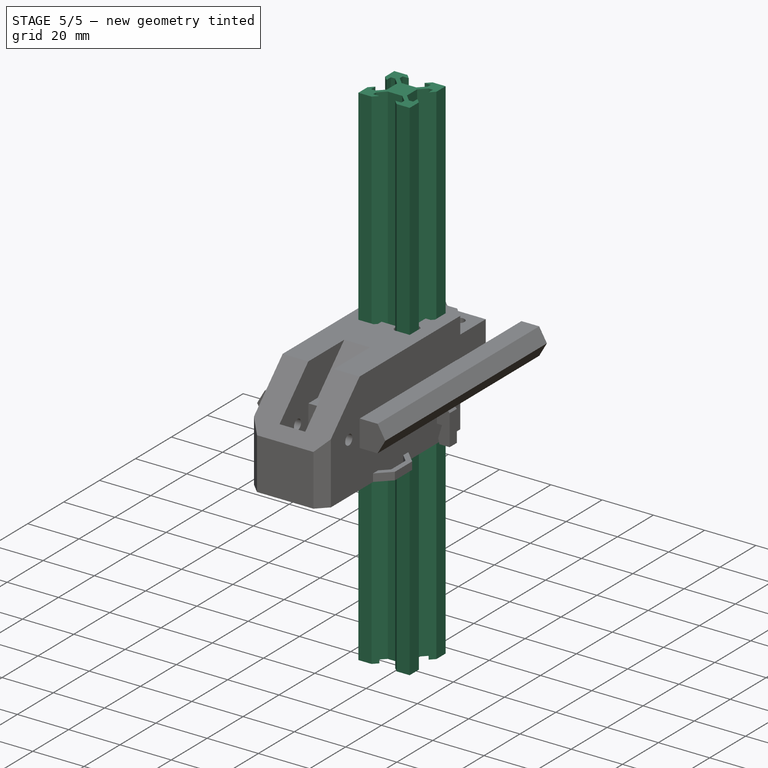
[diagram: stage 5 of 5 — iso view after this stage's code; geometry added in this stage tinted green]
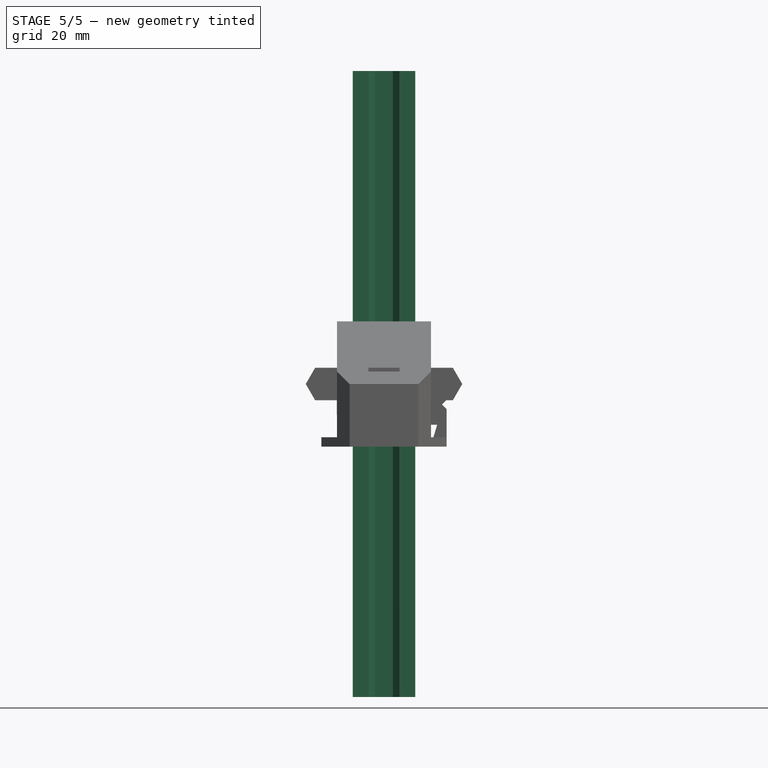
[diagram: stage 5 of 5 — front view after this stage's code; geometry added in this stage tinted green]
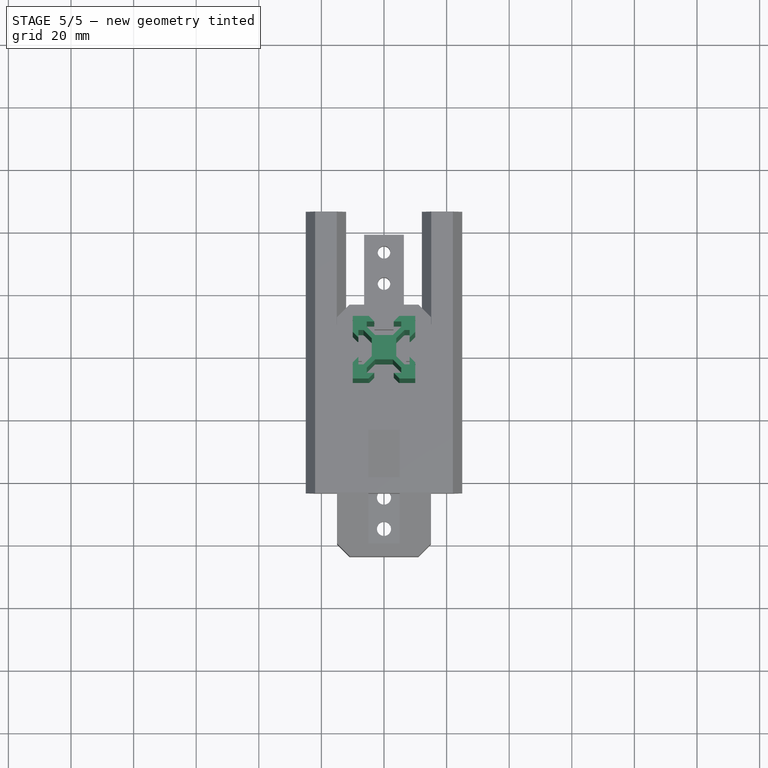
[diagram: stage 5 of 5 — top view after this stage's code; geometry added in this stage tinted green]
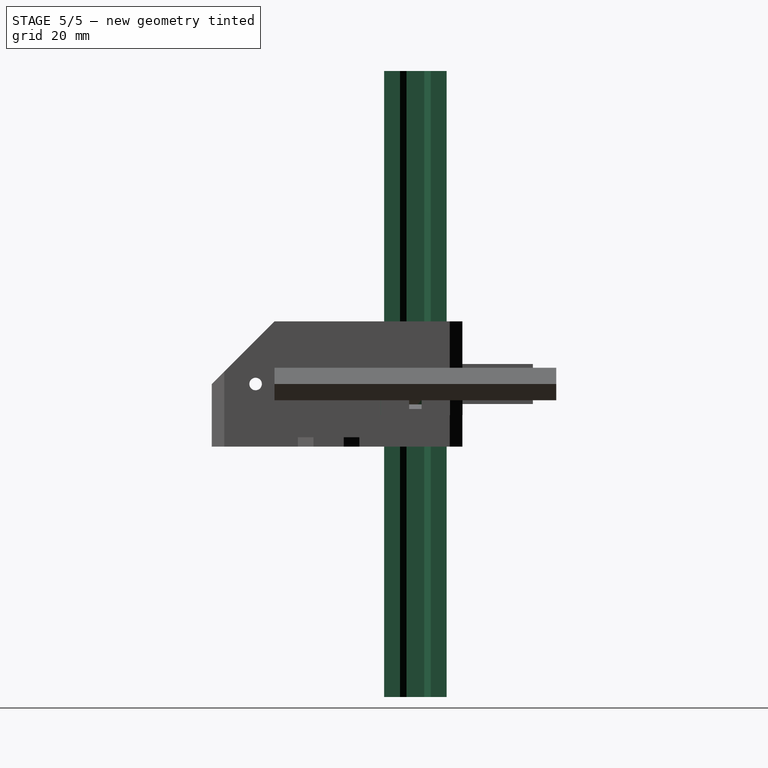
[diagram: stage 5 of 5 — right view after this stage's code; geometry added in this stage tinted green]
FEATURE [Sketcher::SketchObject] Sketch
  FullyConstrained = true
  MapMode = 5
  Support = -> [XY_Plane]
  sketch-geometry (13):
    g0: LineSegment StartX=0 StartY=10 StartZ=0 EndX=0 EndY=-10 EndZ=0
    g1: LineSegment StartX=10 StartY=0 StartZ=0 EndX=-10 EndY=0 EndZ=0
    g2: LineSegment StartX=0 StartY=10 StartZ=0 EndX=10 EndY=10 EndZ=0
    g3: LineSegment StartX=10 StartY=0 StartZ=0 EndX=10 EndY=10 EndZ=0
    g4: LineSegment StartX=10 StartY=10 StartZ=0 EndX=4.9 EndY=10 EndZ=0
    g5: LineSegment StartX=4.9 StartY=10 StartZ=0 EndX=3.1 EndY=8.2 EndZ=0
    g6: LineSegment StartX=3.1 StartY=8.2 StartZ=0 EndX=5.49934 EndY=8.2 EndZ=0
    g7: LineSegment StartX=5.49934 StartY=8.2 StartZ=0 EndX=5.49934 EndY=6.56 EndZ=0
    g8: LineSegment StartX=5.49934 StartY=6.56 StartZ=0 EndX=2.84 EndY=3.90066 EndZ=0
    g9: LineSegment StartX=2.84 StartY=3.90066 StartZ=0 EndX=0 EndY=3.90066 EndZ=0
    g10: LineSegment StartX=10 StartY=10 StartZ=0 EndX=0 EndY=0 EndZ=0
    g11: LineSegment StartX=5.49934 StartY=6.56 StartZ=0 EndX=6.02967 EndY=6.02967 EndZ=0
    g12: LineSegment StartX=0 StartY=3.90066 StartZ=0 EndX=0 EndY=0 EndZ=0
  constraints (36):
    c: PointOnObject(g0,g-2)
    c: PointOnObject(g1,g-1)
    c: Symmetric(g0,g0,g-1)
    c: Symmetric(g1,g1,g-1)
    c: Equal(g1,g0)
    c: Coincident(g2,g0)
    c: Horizontal(g2)
    c: Coincident(g3,g1)
    c: Coincident(g3,g2)
    c: Vertical(g3)
    c: DistanceX(g1,g1) = 20
    c: Coincident(g4,g2)
    c: PointOnObject(g4,g2)
    c: Coincident(g5,g4)
    c: Coincident(g6,g5)
    c: Horizontal(g6)
    c: Coincident(g7,g6)
    c: Coincident(g8,g7)
    c: Coincident(g9,g8)
    c: PointOnObject(g9,g0)
    c: Horizontal(g9)
    c: Vertical(g7)
    c: Coincident(g10,g4)
    c: Coincident(g10,g-1)
    c: DistanceY(g5,g4) = 1.8
    c: Angle(g2,g5) = 0.785398
    c: DistanceY(g7,g7) = 1.64
    c: DistanceX(g9,g9) = 2.84
    c: DistanceX(g0,g5) = 3.1
    c: Parallel(g8,g10)
    c: Coincident(g11,g7)
    c: PointOnObject(g11,g10)
    c: Perpendicular(g11,g8)
    c: Distance(g11) = 0.75
    c: Coincident(g12,g9)
    c: Coincident(g12,g10)
FEATURE [PartDesign::Pad] Pad
  Direction = (0,0,1)
  Length = 200
  Length2 = 10
  Midplane = true
  Profile = -> Sketch
  ReferenceAxis = -> Sketch [N_Axis]
  Type = 0
FEATURE [PartDesign::Mirrored] Mirrored
  MirrorPlane = -> Sketch [V_Axis]
FEATURE [PartDesign::PolarPattern] PolarPattern
  Angle = 360
  Axis = -> Sketch [N_Axis]
  Occurrences = 4
FEATURE [PartDesign::MultiTransform] MultiTransform
  BaseFeature = -> Pad
  Originals = -> [Pad]
  Transformations = -> [Mirrored,PolarPattern]
FEATURE [Sketcher::SketchObject] Sketch009
  ExternalGeometry = -> [Pad006]
  FullyConstrained = true
  MapMode = 5
  Placement = pos=(0,0,0) rot=(1,0,0;1.5708rad)
  Support = -> [XZ_Plane003]
  sketch-geometry (8):
    g0: LineSegment StartX=15.05 StartY=3 StartZ=0 EndX=16.05 EndY=3 EndZ=0
    g1: LineSegment StartX=16.05 StartY=3 StartZ=0 EndX=15.55 EndY=1 EndZ=0
    g2: LineSegment StartX=15.55 StartY=1 StartZ=0 EndX=17.05 EndY=-3 EndZ=0
    g3: LineSegment StartX=17.05 StartY=-3 StartZ=0 EndX=15.05 EndY=-3 EndZ=0
    g4: LineSegment StartX=16.05 StartY=3 StartZ=0 EndX=20.05 EndY=3 EndZ=0
    g5: LineSegment StartX=20.05 StartY=3 StartZ=0 EndX=20.05 EndY=-5 EndZ=0
    g6: LineSegment StartX=20.05 StartY=-5 StartZ=0 EndX=15.05 EndY=-10 EndZ=0
    g7: LineSegment StartX=15.05 StartY=-3 StartZ=0 EndX=15.05 EndY=-10 EndZ=0
  constraints (23):
    c: Coincident(g0,g-3)
    c: Horizontal(g0)
    c: Coincident(g1,g0)
    c: Coincident(g2,g1)
    c: Coincident(g3,g2)
    c: Horizontal(g3)
    c: PointOnObject(g3,g-4)
    c: Coincident(g4,g1)
    c: Horizontal(g4)
    c: Coincident(g5,g4)
    c: Vertical(g5)
    c: Coincident(g6,g5)
    c: PointOnObject(g6,g-4)
    c: Coincident(g7,g3)
    c: Coincident(g7,g6)
    c: DistanceX(g0,g0) = 1
    c: DistanceX(g0,g1) = 0.5
    c: DistanceX(g3,g3) = 2
    c: DistanceX(g4,g4) = 4
    c: DistanceY(g6,g3) = 7
    c: DistanceY(g1,g1) = 2
    c: DistanceY(g3,g1) = 4
    c: Angle(g6,g7) = 0.785398
FEATURE [PartDesign::Pad] Pad007
  BaseFeature = -> Pad006
  Direction = (0,-1,2e-16)
  Length = 4
  Length2 = 10
  Midplane = true
  Profile = -> Sketch009
  ReferenceAxis = -> Sketch009 [N_Axis]
  Type = 0
FEATURE [PartDesign::Chamfer] Chamfer003
  Angle = 45
  Base = -> Pad007 [Edge27,Edge9,Edge25,Edge5,Edge15,Edge2,Edge16,Edge1]
  BaseFeature = -> Pad007
  ChamferType = 0
  FlipDirection = false
  Size = 4
  Size2 = 1
  SupportTransform = false
  UseAllEdges = false
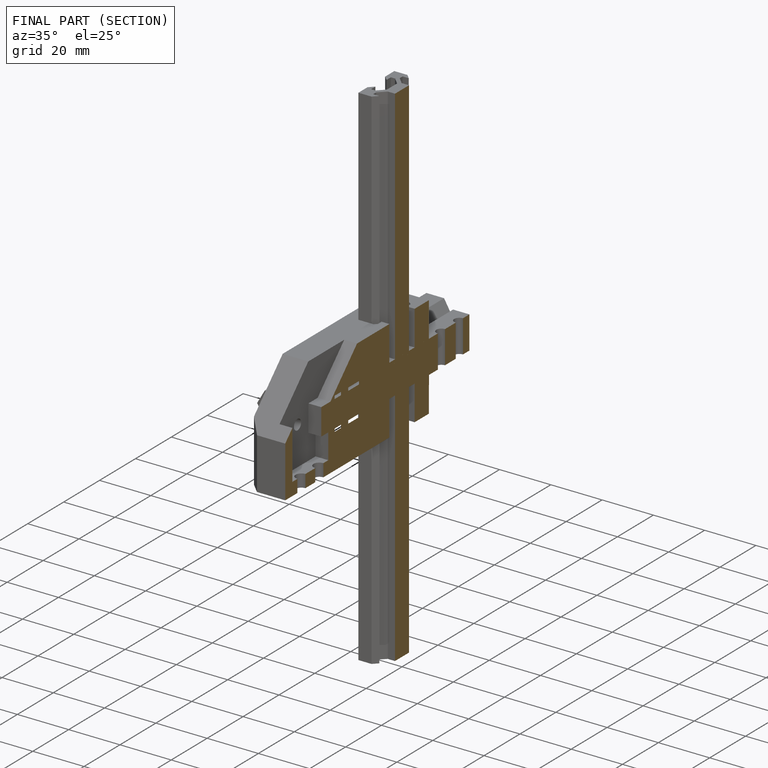
[diagram: finished part — half-section view (interior)]
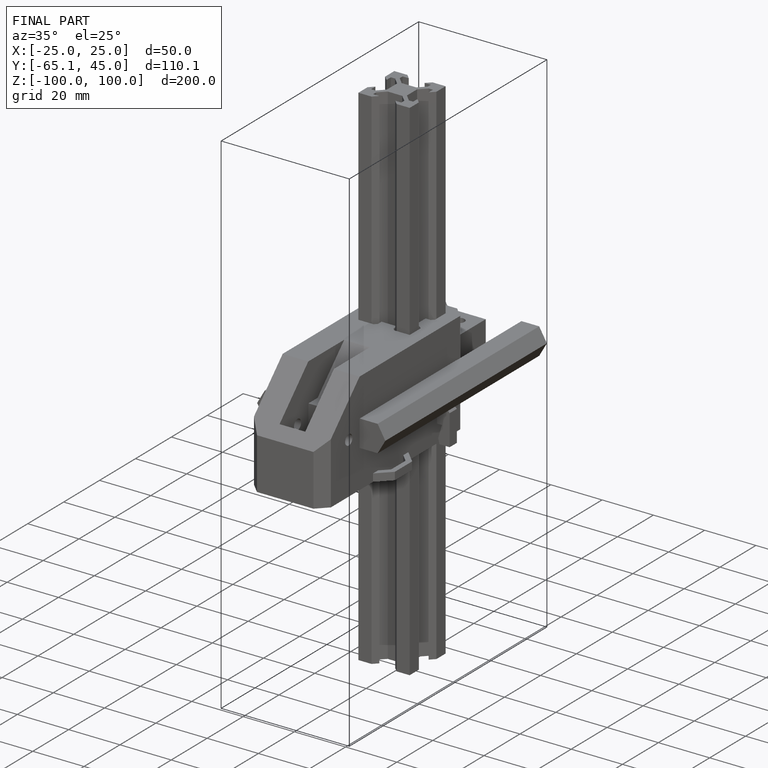
[diagram: finished part — iso view with bounding-box wireframe]
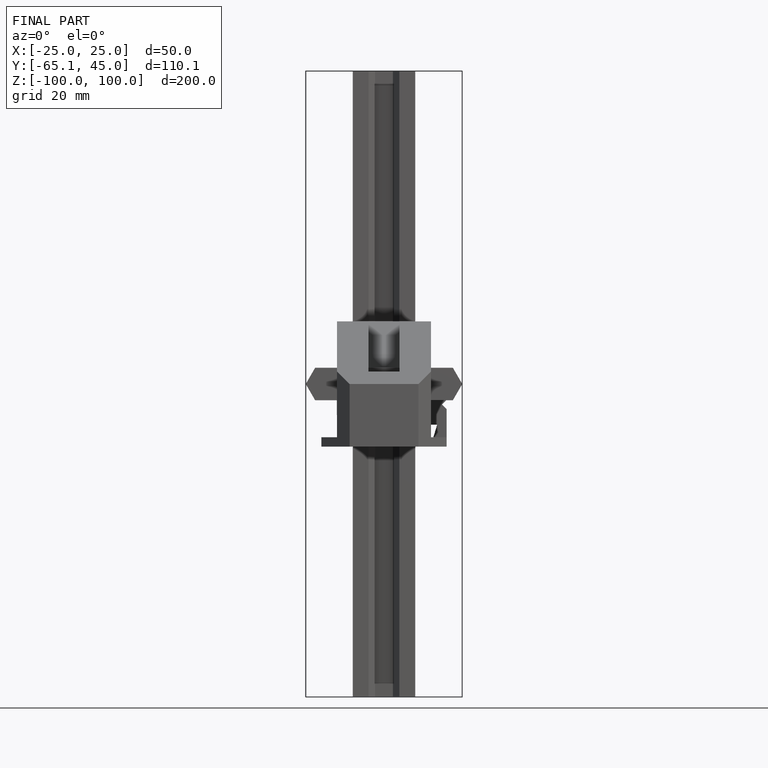
[diagram: finished part — front view with bounding-box wireframe]
